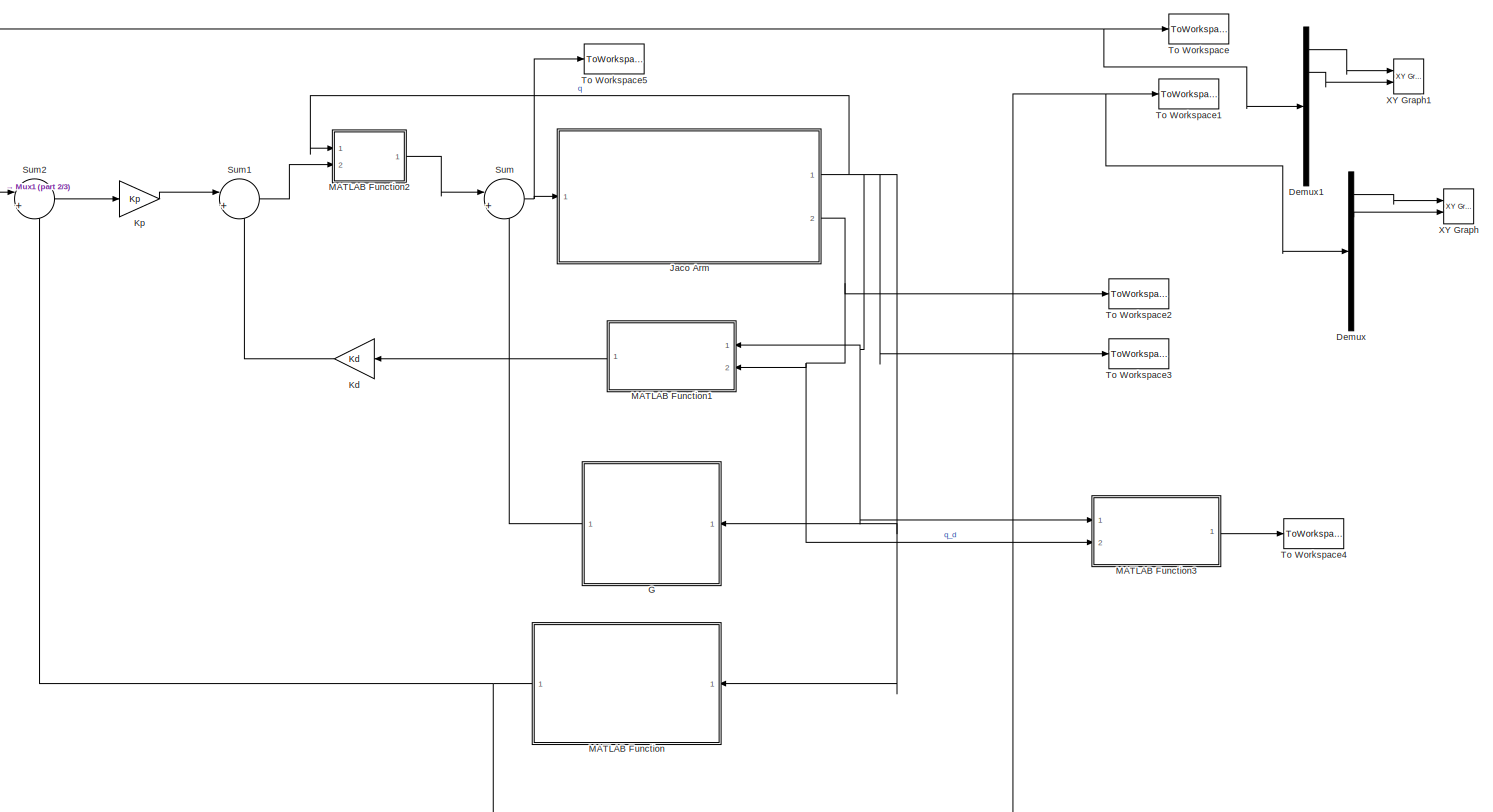
[diagram: root canvas - part 1/3, center side, full height]
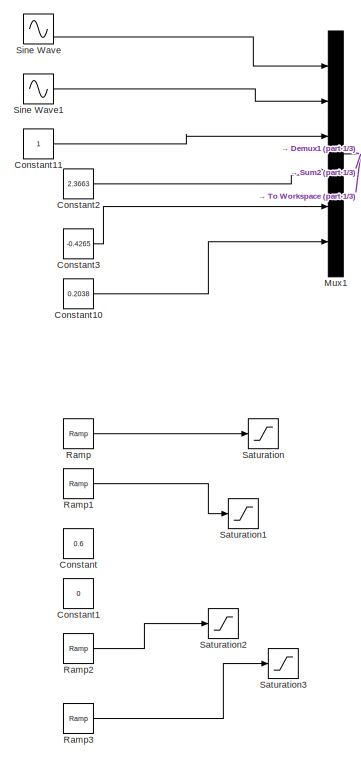
[diagram: root canvas - part 2/3, left side, full height]
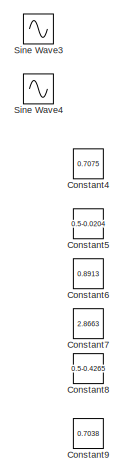
[diagram: root canvas - part 3/3, bottom left region]
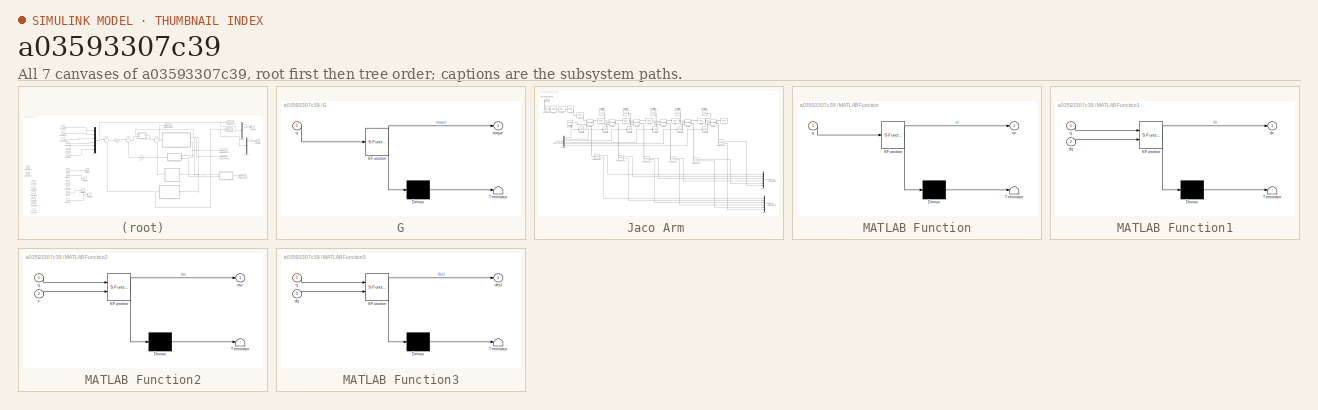
[diagram: thumbnail index - all 7 canvases of the model, root first then tree order]
MODEL slx_a03593307c39
KIND model
CONFIG AbsTol = auto
CONFIG EnableMultiTasking = off
CONFIG FixedStep = auto
CONFIG MaxStep = auto
CONFIG MinStep = auto
CONFIG RelTol = 1e-4
CONFIG SampleTimeConstraint = Unconstrained
CONFIG Solver = ode23tb
CONFIG SolverName = ode23tb
CONFIG StartTime = 0.0
CONFIG StopTime = 40
BLOCK [Constant] Constant
  Value = 0.6
  VectorParams1D = off
BLOCK [Constant] Constant1
  Value = 0
  VectorParams1D = off
BLOCK [Constant] Constant10
  Value = 0.2038
  VectorParams1D = off
BLOCK [Constant] Constant11
  VectorParams1D = off
BLOCK [Constant] Constant2
  Value = 2.3663
  VectorParams1D = off
BLOCK [Constant] Constant3
  Value = -0.4265
  VectorParams1D = off
BLOCK [Constant] Constant4
  Value = 0.7075
  VectorParams1D = off
BLOCK [Constant] Constant5
  Value = 0.5-0.0204
  VectorParams1D = off
BLOCK [Constant] Constant6
  Value = 0.8913
  VectorParams1D = off
BLOCK [Constant] Constant7
  Value = 2.8663
  VectorParams1D = off
BLOCK [Constant] Constant8
  Value = 0.5-0.4265
  VectorParams1D = off
BLOCK [Constant] Constant9
  Value = 0.7038
  VectorParams1D = off
BLOCK [Demux] Demux
  Commented = on
  DisplayOption = bar
  Outputs = 6
  Ports = [1, 6]
BLOCK [Demux] Demux1
  Commented = on
  DisplayOption = bar
  Outputs = 6
  Ports = [1, 6]
BLOCK [SubSystem] G
  ErrorFcn = Stateflow.Translate.translate
  PermitHierarchicalResolution = ExplicitOnly
  Ports = [1, 1]
  RequestExecContextInheritance = off
  SFBlockType = MATLAB Function
  TreatAsAtomicUnit = on
  Variant = off
BLOCK [Demux] G/ Demux 
  Outputs = 1
  Ports = [1, 1]
BLOCK [S-Function] G/ SFunction 
  EnableBusSupport = on
  FunctionName = sf_sfun
  PortCounts = [1 2]
  Ports = [1, 2]
  SFcnIsStateOwnerBlock = off
  SFunctionDeploymentMode = off
  Tag = Stateflow S-Function PD_Ops 2
BLOCK [Terminator] G/ Terminator 
BLOCK [Inport] G/q
  IconDisplay = Port number
BLOCK [Outport] G/torque
  IconDisplay = Port number
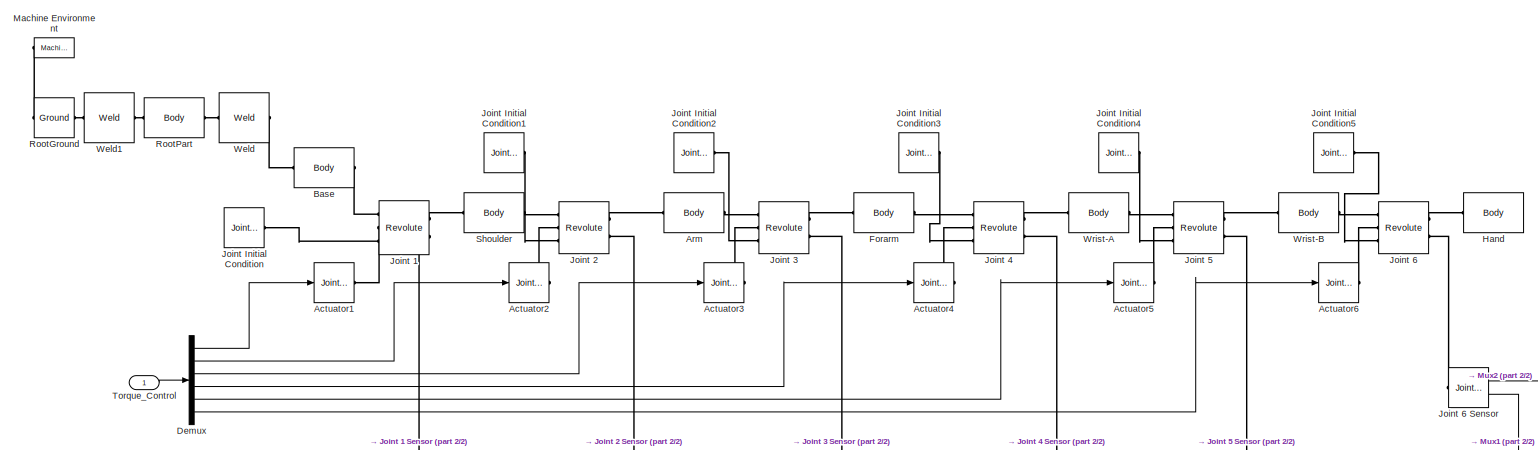
[diagram: Jaco Arm  - part 1/2, full width, top band]
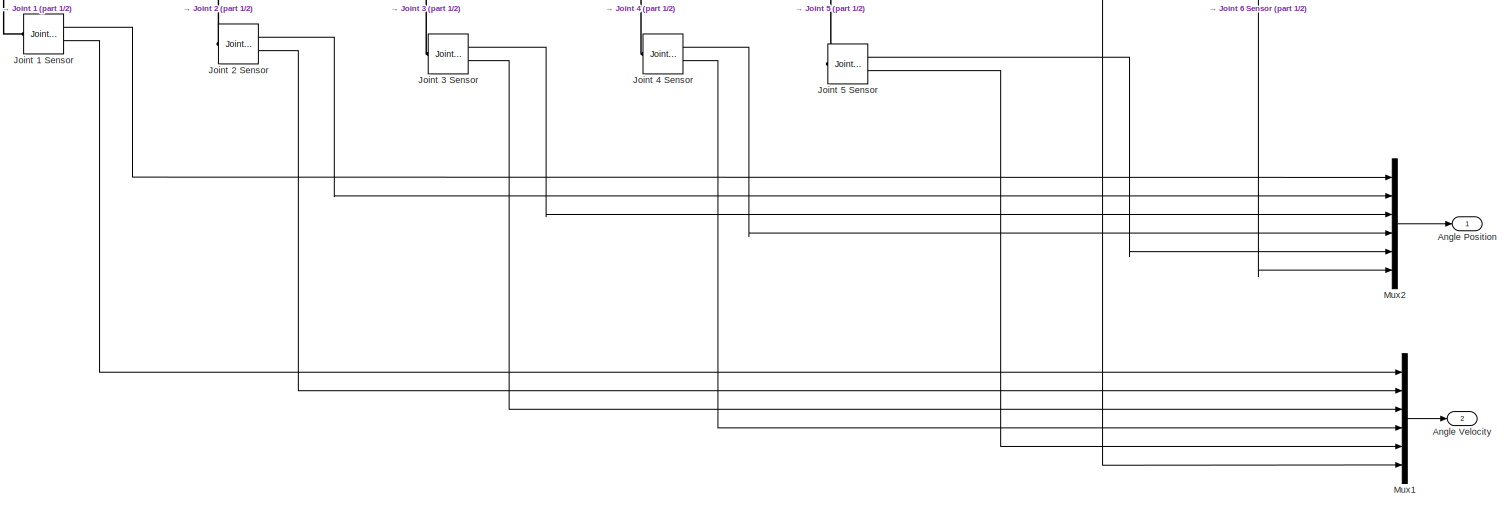
[diagram: Jaco Arm  - part 2/2, full width, bottom band]
BLOCK [SubSystem] Jaco Arm 
  Ports = [1, 2]
  RequestExecContextInheritance = off
  Variant = off
BLOCK [Reference] Jaco Arm /Actuator1  REF=mblibv1/Sensors & 
Actuators/Joint Actuator
  Ports = [1, 0, 0, 0, 0, 0, 1]
  SourceBlock = mblibv1/Sensors & \nActuators/Joint Actuator
  SourceProductBaseCode = MS
  SourceProductName = Simscape Multibody
  SourceType = Joint Actuator
BLOCK [Reference] Jaco Arm /Actuator2  REF=mblibv1/Sensors & 
Actuators/Joint Actuator
  Ports = [1, 0, 0, 0, 0, 0, 1]
  SourceBlock = mblibv1/Sensors & \nActuators/Joint Actuator
  SourceProductBaseCode = MS
  SourceProductName = Simscape Multibody
  SourceType = Joint Actuator
BLOCK [Reference] Jaco Arm /Actuator3  REF=mblibv1/Sensors & 
Actuators/Joint Actuator
  Ports = [1, 0, 0, 0, 0, 0, 1]
  SourceBlock = mblibv1/Sensors & \nActuators/Joint Actuator
  SourceProductBaseCode = MS
  SourceProductName = Simscape Multibody
  SourceType = Joint Actuator
BLOCK [Reference] Jaco Arm /Actuator4  REF=mblibv1/Sensors & 
Actuators/Joint Actuator
  Ports = [1, 0, 0, 0, 0, 0, 1]
  SourceBlock = mblibv1/Sensors & \nActuators/Joint Actuator
  SourceProductBaseCode = MS
  SourceProductName = Simscape Multibody
  SourceType = Joint Actuator
BLOCK [Reference] Jaco Arm /Actuator5  REF=mblibv1/Sensors & 
Actuators/Joint Actuator
  Ports = [1, 0, 0, 0, 0, 0, 1]
  SourceBlock = mblibv1/Sensors & \nActuators/Joint Actuator
  SourceProductBaseCode = MS
  SourceProductName = Simscape Multibody
  SourceType = Joint Actuator
BLOCK [Reference] Jaco Arm /Actuator6  REF=mblibv1/Sensors & 
Actuators/Joint Actuator
  Ports = [1, 0, 0, 0, 0, 0, 1]
  SourceBlock = mblibv1/Sensors & \nActuators/Joint Actuator
  SourceProductBaseCode = MS
  SourceProductName = Simscape Multibody
  SourceType = Joint Actuator
BLOCK [Outport] Jaco Arm /Angle Position 
  IconDisplay = Port number
BLOCK [Outport] Jaco Arm /Angle Velocity
  IconDisplay = Port number
  Port = 2
BLOCK [Reference] Jaco Arm /Arm  REF=mblibv1/Bodies/Body
  Ports = [0, 0, 0, 0, 0, 1, 1]
  SourceBlock = mblibv1/Bodies/Body
  SourceProductBaseCode = MS
  SourceProductName = Simscape Multibody
  SourceType = Body
BLOCK [Reference] Jaco Arm /Base  REF=mblibv1/Bodies/Body
  Ports = [0, 0, 0, 0, 0, 1, 1]
  SourceBlock = mblibv1/Bodies/Body
  SourceProductBaseCode = MS
  SourceProductName = Simscape Multibody
  SourceType = Body
BLOCK [Demux] Jaco Arm /Demux
  DisplayOption = bar
  Outputs = 6
  Ports = [1, 6]
BLOCK [Reference] Jaco Arm /Forarm  REF=mblibv1/Bodies/Body
  Ports = [0, 0, 0, 0, 0, 1, 1]
  SourceBlock = mblibv1/Bodies/Body
  SourceProductBaseCode = MS
  SourceProductName = Simscape Multibody
  SourceType = Body
BLOCK [Reference] Jaco Arm /Hand  REF=mblibv1/Bodies/Body
  Ports = [0, 0, 0, 0, 0, 1]
  SourceBlock = mblibv1/Bodies/Body
  SourceProductBaseCode = MS
  SourceProductName = Simscape Multibody
  SourceType = Body
BLOCK [Reference] Jaco Arm /Joint 1  REF=mblibv1/Joints/Revolute
  Ports = [0, 0, 0, 0, 0, 3, 2]
  SourceBlock = mblibv1/Joints/Revolute
  SourceProductBaseCode = MS
  SourceProductName = Simscape Multibody
  SourceType = Revolute
BLOCK [Reference] Jaco Arm /Joint 1 Sensor  REF=mblibv1/Sensors & 
Actuators/Joint Sensor
  Ports = [0, 2, 0, 0, 0, 1]
  SourceBlock = mblibv1/Sensors & \nActuators/Joint Sensor
  SourceProductBaseCode = MS
  SourceProductName = Simscape Multibody
  SourceType = Joint Sensor
BLOCK [Reference] Jaco Arm /Joint 2  REF=mblibv1/Joints/Revolute
  Ports = [0, 0, 0, 0, 0, 3, 2]
  SourceBlock = mblibv1/Joints/Revolute
  SourceProductBaseCode = MS
  SourceProductName = Simscape Multibody
  SourceType = Revolute
BLOCK [Reference] Jaco Arm /Joint 2 Sensor  REF=mblibv1/Sensors & 
Actuators/Joint Sensor
  Ports = [0, 2, 0, 0, 0, 1]
  SourceBlock = mblibv1/Sensors & \nActuators/Joint Sensor
  SourceProductBaseCode = MS
  SourceProductName = Simscape Multibody
  SourceType = Joint Sensor
BLOCK [Reference] Jaco Arm /Joint 3  REF=mblibv1/Joints/Revolute
  Ports = [0, 0, 0, 0, 0, 3, 2]
  SourceBlock = mblibv1/Joints/Revolute
  SourceProductBaseCode = MS
  SourceProductName = Simscape Multibody
  SourceType = Revolute
BLOCK [Reference] Jaco Arm /Joint 3 Sensor  REF=mblibv1/Sensors & 
Actuators/Joint Sensor
  Ports = [0, 2, 0, 0, 0, 1]
  SourceBlock = mblibv1/Sensors & \nActuators/Joint Sensor
  SourceProductBaseCode = MS
  SourceProductName = Simscape Multibody
  SourceType = Joint Sensor
BLOCK [Reference] Jaco Arm /Joint 4  REF=mblibv1/Joints/Revolute
  Ports = [0, 0, 0, 0, 0, 3, 2]
  SourceBlock = mblibv1/Joints/Revolute
  SourceProductBaseCode = MS
  SourceProductName = Simscape Multibody
  SourceType = Revolute
BLOCK [Reference] Jaco Arm /Joint 4 Sensor  REF=mblibv1/Sensors & 
Actuators/Joint Sensor
  Ports = [0, 2, 0, 0, 0, 1]
  SourceBlock = mblibv1/Sensors & \nActuators/Joint Sensor
  SourceProductBaseCode = MS
  SourceProductName = Simscape Multibody
  SourceType = Joint Sensor
BLOCK [Reference] Jaco Arm /Joint 5  REF=mblibv1/Joints/Revolute
  Ports = [0, 0, 0, 0, 0, 3, 2]
  SourceBlock = mblibv1/Joints/Revolute
  SourceProductBaseCode = MS
  SourceProductName = Simscape Multibody
  SourceType = Revolute
BLOCK [Reference] Jaco Arm /Joint 5 Sensor  REF=mblibv1/Sensors & 
Actuators/Joint Sensor
  Ports = [0, 2, 0, 0, 0, 1]
  SourceBlock = mblibv1/Sensors & \nActuators/Joint Sensor
  SourceProductBaseCode = MS
  SourceProductName = Simscape Multibody
  SourceType = Joint Sensor
BLOCK [Reference] Jaco Arm /Joint 6  REF=mblibv1/Joints/Revolute
  Ports = [0, 0, 0, 0, 0, 3, 2]
  SourceBlock = mblibv1/Joints/Revolute
  SourceProductBaseCode = MS
  SourceProductName = Simscape Multibody
  SourceType = Revolute
BLOCK [Reference] Jaco Arm /Joint 6 Sensor  REF=mblibv1/Sensors & 
Actuators/Joint Sensor
  Ports = [0, 2, 0, 0, 0, 1]
  SourceBlock = mblibv1/Sensors & \nActuators/Joint Sensor
  SourceProductBaseCode = MS
  SourceProductName = Simscape Multibody
  SourceType = Joint Sensor
BLOCK [Reference] Jaco Arm /Joint Initial Condition  REF=mblibv1/Sensors & 
Actuators/Joint Initial Condition
  Ports = [0, 0, 0, 0, 0, 0, 1]
  SourceBlock = mblibv1/Sensors & \nActuators/Joint Initial Condition
  SourceProductBaseCode = MS
  SourceProductName = Simscape Multibody
  SourceType = Joint Initial Condition
BLOCK [Reference] Jaco Arm /Joint Initial Condition1  REF=mblibv1/Sensors & 
Actuators/Joint Initial Condition
  Ports = [0, 0, 0, 0, 0, 0, 1]
  SourceBlock = mblibv1/Sensors & \nActuators/Joint Initial Condition
  SourceProductBaseCode = MS
  SourceProductName = Simscape Multibody
  SourceType = Joint Initial Condition
BLOCK [Reference] Jaco Arm /Joint Initial Condition2  REF=mblibv1/Sensors & 
Actuators/Joint Initial Condition
  Ports = [0, 0, 0, 0, 0, 0, 1]
  SourceBlock = mblibv1/Sensors & \nActuators/Joint Initial Condition
  SourceProductBaseCode = MS
  SourceProductName = Simscape Multibody
  SourceType = Joint Initial Condition
BLOCK [Reference] Jaco Arm /Joint Initial Condition3  REF=mblibv1/Sensors & 
Actuators/Joint Initial Condition
  Ports = [0, 0, 0, 0, 0, 0, 1]
  SourceBlock = mblibv1/Sensors & \nActuators/Joint Initial Condition
  SourceProductBaseCode = MS
  SourceProductName = Simscape Multibody
  SourceType = Joint Initial Condition
BLOCK [Reference] Jaco Arm /Joint Initial Condition4  REF=mblibv1/Sensors & 
Actuators/Joint Initial Condition
  Ports = [0, 0, 0, 0, 0, 0, 1]
  SourceBlock = mblibv1/Sensors & \nActuators/Joint Initial Condition
  SourceProductBaseCode = MS
  SourceProductName = Simscape Multibody
  SourceType = Joint Initial Condition
BLOCK [Reference] Jaco Arm /Joint Initial Condition5  REF=mblibv1/Sensors & 
Actuators/Joint Initial Condition
  Ports = [0, 0, 0, 0, 0, 0, 1]
  SourceBlock = mblibv1/Sensors & \nActuators/Joint Initial Condition
  SourceProductBaseCode = MS
  SourceProductName = Simscape Multibody
  SourceType = Joint Initial Condition
BLOCK [Reference] Jaco Arm /Machine Environment  REF=mblibv1/Bodies/Machine
Environment
  Ports = [0, 0, 0, 0, 0, 0, 1]
  SourceBlock = mblibv1/Bodies/Machine\nEnvironment
  SourceProductBaseCode = MS
  SourceProductName = Simscape Multibody
  SourceType = Machine Environment
BLOCK [Mux] Jaco Arm /Mux1
  DisplayOption = bar
  Inputs = 6
  Ports = [6, 1]
BLOCK [Mux] Jaco Arm /Mux2
  DisplayOption = bar
  Inputs = 6
  Ports = [6, 1]
BLOCK [Reference] Jaco Arm /RootGround  REF=mblibv1/Bodies/Ground
  Ports = [0, 0, 0, 0, 0, 1, 1]
  SourceBlock = mblibv1/Bodies/Ground
  SourceProductBaseCode = MS
  SourceProductName = Simscape Multibody
  SourceType = Ground
  UserDataPersistent = on
BLOCK [Reference] Jaco Arm /RootPart  REF=mblibv1/Bodies/Body
  Ports = [0, 0, 0, 0, 0, 1, 1]
  SourceBlock = mblibv1/Bodies/Body
  SourceProductBaseCode = MS
  SourceProductName = Simscape Multibody
  SourceType = Body
BLOCK [Reference] Jaco Arm /Shoulder  REF=mblibv1/Bodies/Body
  Ports = [0, 0, 0, 0, 0, 1, 1]
  SourceBlock = mblibv1/Bodies/Body
  SourceProductBaseCode = MS
  SourceProductName = Simscape Multibody
  SourceType = Body
BLOCK [Inport] Jaco Arm /Torque_Control 
  IconDisplay = Port number
BLOCK [Reference] Jaco Arm /Weld  REF=mblibv1/Joints/Weld
  Ports = [0, 0, 0, 0, 0, 1, 1]
  SourceBlock = mblibv1/Joints/Weld
  SourceProductBaseCode = MS
  SourceProductName = Simscape Multibody
  SourceType = Weld
BLOCK [Reference] Jaco Arm /Weld1  REF=mblibv1/Joints/Weld
  Ports = [0, 0, 0, 0, 0, 1, 1]
  SourceBlock = mblibv1/Joints/Weld
  SourceProductBaseCode = MS
  SourceProductName = Simscape Multibody
  SourceType = Weld
BLOCK [Reference] Jaco Arm /Wrist-A  REF=mblibv1/Bodies/Body
  Ports = [0, 0, 0, 0, 0, 1, 1]
  SourceBlock = mblibv1/Bodies/Body
  SourceProductBaseCode = MS
  SourceProductName = Simscape Multibody
  SourceType = Body
BLOCK [Reference] Jaco Arm /Wrist-B  REF=mblibv1/Bodies/Body
  Ports = [0, 0, 0, 0, 0, 1, 1]
  SourceBlock = mblibv1/Bodies/Body
  SourceProductBaseCode = MS
  SourceProductName = Simscape Multibody
  SourceType = Body
BLOCK [Gain] Kd
  Gain = Kd
  Multiplication = Matrix(K*u)
  OutDataTypeStr = Inherit: Inherit via internal rule
  ParamDataTypeStr = Inherit: Inherit via internal rule
  SaturateOnIntegerOverflow = off
BLOCK [Gain] Kp
  Gain = Kp
  Multiplication = Matrix(K*u)
  OutDataTypeStr = Inherit: Inherit via internal rule
  ParamDataTypeStr = Inherit: Inherit via internal rule
  SaturateOnIntegerOverflow = off
BLOCK [SubSystem] MATLAB Function
  ErrorFcn = Stateflow.Translate.translate
  PermitHierarchicalResolution = ExplicitOnly
  Ports = [1, 1]
  RequestExecContextInheritance = off
  SFBlockType = MATLAB Function
  TreatAsAtomicUnit = on
  Variant = off
BLOCK [Demux] MATLAB Function/ Demux 
  Outputs = 1
  Ports = [1, 1]
BLOCK [S-Function] MATLAB Function/ SFunction 
  EnableBusSupport = on
  FunctionName = sf_sfun
  PortCounts = [1 2]
  Ports = [1, 2]
  SFcnIsStateOwnerBlock = off
  SFunctionDeploymentMode = off
  Tag = Stateflow S-Function PD_Ops 1
BLOCK [Terminator] MATLAB Function/ Terminator 
BLOCK [Inport] MATLAB Function/q
  IconDisplay = Port number
BLOCK [Outport] MATLAB Function/xe
  IconDisplay = Port number
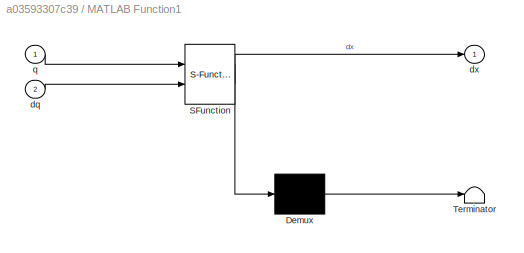
BLOCK [SubSystem] MATLAB Function1
  ErrorFcn = Stateflow.Translate.translate
  PermitHierarchicalResolution = ExplicitOnly
  Ports = [2, 1]
  RequestExecContextInheritance = off
  SFBlockType = MATLAB Function
  TreatAsAtomicUnit = on
  Variant = off
BLOCK [Demux] MATLAB Function1/ Demux 
  Outputs = 1
  Ports = [1, 1]
BLOCK [S-Function] MATLAB Function1/ SFunction 
  EnableBusSupport = on
  FunctionName = sf_sfun
  PortCounts = [2 2]
  Ports = [2, 2]
  SFcnIsStateOwnerBlock = off
  SFunctionDeploymentMode = off
  Tag = Stateflow S-Function PD_Ops 3
BLOCK [Terminator] MATLAB Function1/ Terminator 
BLOCK [Inport] MATLAB Function1/dq
  IconDisplay = Port number
  Port = 2
BLOCK [Outport] MATLAB Function1/dx
  IconDisplay = Port number
BLOCK [Inport] MATLAB Function1/q
  IconDisplay = Port number
BLOCK [SubSystem] MATLAB Function2
  ErrorFcn = Stateflow.Translate.translate
  PermitHierarchicalResolution = ExplicitOnly
  Ports = [2, 1]
  RequestExecContextInheritance = off
  SFBlockType = MATLAB Function
  TreatAsAtomicUnit = on
  Variant = off
BLOCK [Demux] MATLAB Function2/ Demux 
  Outputs = 1
  Ports = [1, 1]
BLOCK [S-Function] MATLAB Function2/ SFunction 
  EnableBusSupport = on
  FunctionName = sf_sfun
  PortCounts = [2 2]
  Ports = [2, 2]
  SFcnIsStateOwnerBlock = off
  SFunctionDeploymentMode = off
  Tag = Stateflow S-Function PD_Ops 4
BLOCK [Terminator] MATLAB Function2/ Terminator 
BLOCK [Inport] MATLAB Function2/q
  IconDisplay = Port number
BLOCK [Outport] MATLAB Function2/tau
  IconDisplay = Port number
BLOCK [Inport] MATLAB Function2/x
  IconDisplay = Port number
  Port = 2
BLOCK [SubSystem] MATLAB Function3
  ErrorFcn = Stateflow.Translate.translate
  PermitHierarchicalResolution = ExplicitOnly
  Ports = [2, 1]
  RequestExecContextInheritance = off
  SFBlockType = MATLAB Function
  TreatAsAtomicUnit = on
  Variant = off
BLOCK [Demux] MATLAB Function3/ Demux 
  Outputs = 1
  Ports = [1, 1]
BLOCK [S-Function] MATLAB Function3/ SFunction 
  EnableBusSupport = on
  FunctionName = sf_sfun
  PortCounts = [2 2]
  Ports = [2, 2]
  SFcnIsStateOwnerBlock = off
  SFunctionDeploymentMode = off
  Tag = Stateflow S-Function PD_Ops 5
BLOCK [Terminator] MATLAB Function3/ Terminator 
BLOCK [Outport] MATLAB Function3/detJ
  IconDisplay = Port number
BLOCK [Inport] MATLAB Function3/dq
  IconDisplay = Port number
  Port = 2
BLOCK [Inport] MATLAB Function3/q
  IconDisplay = Port number
BLOCK [Mux] Mux1
  DisplayOption = bar
  Inputs = 6
  Ports = [6, 1]
BLOCK [Reference] Ramp  REF=simulink/Sources/Ramp
  Ports = [0, 1]
  SourceBlock = simulink/Sources/Ramp
  SourceProductBaseCode = SL
  SourceProductName = Simulink
  SourceType = Ramp
BLOCK [Reference] Ramp1  REF=simulink/Sources/Ramp
  Ports = [0, 1]
  SourceBlock = simulink/Sources/Ramp
  SourceProductBaseCode = SL
  SourceProductName = Simulink
  SourceType = Ramp
BLOCK [Reference] Ramp2  REF=simulink/Sources/Ramp
  Ports = [0, 1]
  SourceBlock = simulink/Sources/Ramp
  SourceProductBaseCode = SL
  SourceProductName = Simulink
  SourceType = Ramp
BLOCK [Reference] Ramp3  REF=simulink/Sources/Ramp
  Ports = [0, 1]
  SourceBlock = simulink/Sources/Ramp
  SourceProductBaseCode = SL
  SourceProductName = Simulink
  SourceType = Ramp
BLOCK [Saturate] Saturation
  InputPortMap = u0
  Ports = [1, 1]
BLOCK [Saturate] Saturation1
  InputPortMap = u0
  Ports = [1, 1]
BLOCK [Saturate] Saturation2
  InputPortMap = u0
  Ports = [1, 1]
BLOCK [Saturate] Saturation3
  InputPortMap = u0
  Ports = [1, 1]
BLOCK [Sin] Sine Wave
  Amplitude = 0.2
  Bias = 0.0075
  Phase = pi/2
  Ports = [0, 1]
  SampleTime = 0
BLOCK [Sin] Sine Wave1
  Amplitude = 0.2
  Bias = -0.0204
  Ports = [0, 1]
  SampleTime = 0
BLOCK [Sin] Sine Wave3
  Amplitude = 0.2038
  Bias = -0.4265
  Phase = pi
  Ports = [0, 1]
  SampleTime = 0
BLOCK [Sin] Sine Wave4
  Amplitude = 0.2038
  Phase = pi/2
  Ports = [0, 1]
  SampleTime = 0
BLOCK [Sum] Sum
  IconShape = round
  InputSameDT = off
  Inputs = |++
  OutDataTypeStr = Inherit: Inherit via internal rule
  Ports = [2, 1]
  SaturateOnIntegerOverflow = off
BLOCK [Sum] Sum1
  IconShape = round
  InputSameDT = off
  Inputs = |+-
  OutDataTypeStr = Inherit: Inherit via internal rule
  Ports = [2, 1]
  SaturateOnIntegerOverflow = off
BLOCK [Sum] Sum2
  IconShape = round
  InputSameDT = off
  Inputs = |+-
  OutDataTypeStr = Inherit: Inherit via internal rule
  Ports = [2, 1]
  SaturateOnIntegerOverflow = off
BLOCK [ToWorkspace] To Workspace
  FixptAsFi = on
  MaxDataPoints = inf
  Ports = [1]
  SampleTime = -1
  Save2DSignal = 3-D array (concatenate along third dimension)
  SaveFormat = Timeseries
  VariableName = xd
BLOCK [ToWorkspace] To Workspace1
  FixptAsFi = on
  MaxDataPoints = inf
  Ports = [1]
  SampleTime = -1
  Save2DSignal = 3-D array (concatenate along third dimension)
  SaveFormat = Timeseries
  VariableName = xe
BLOCK [ToWorkspace] To Workspace2
  FixptAsFi = on
  MaxDataPoints = inf
  Ports = [1]
  SampleTime = -1
  Save2DSignal = 3-D array (concatenate along third dimension)
  SaveFormat = Timeseries
  VariableName = qd
BLOCK [ToWorkspace] To Workspace3
  FixptAsFi = on
  MaxDataPoints = inf
  Ports = [1]
  SampleTime = -1
  Save2DSignal = 3-D array (concatenate along third dimension)
  SaveFormat = Timeseries
  VariableName = q
BLOCK [ToWorkspace] To Workspace4
  FixptAsFi = on
  MaxDataPoints = inf
  Ports = [1]
  SampleTime = -1
  Save2DSignal = 3-D array (concatenate along third dimension)
  SaveFormat = Timeseries
  VariableName = detJ
BLOCK [ToWorkspace] To Workspace5
  FixptAsFi = on
  MaxDataPoints = inf
  Ports = [1]
  SampleTime = -1
  Save2DSignal = 3-D array (concatenate along third dimension)
  SaveFormat = Timeseries
  VariableName = torques
BLOCK [Reference] XY Graph  REF=simulink/Sinks/XY Graph
  Commented = on
  Ports = [2]
  SourceBlock = simulink/Sinks/XY Graph
  SourceProductBaseCode = SL
  SourceProductName = Simulink
  SourceType = XY scope.
BLOCK [Reference] XY Graph1  REF=simulink/Sinks/XY Graph
  Commented = on
  Ports = [2]
  SourceBlock = simulink/Sinks/XY Graph
  SourceProductBaseCode = SL
  SourceProductName = Simulink
  SourceType = XY scope.
LINE Constant10:1 -> Mux1:6
LINE Constant11:1 -> Mux1:3
LINE Constant2:1 -> Mux1:4
LINE Constant3:1 -> Mux1:5
LINE Demux1:1 -> XY Graph1:1
LINE Demux1:2 -> XY Graph1:2
LINE Demux:1 -> XY Graph:1
LINE Demux:2 -> XY Graph:2
LINE G:1 -> Sum:2
LINE Jaco Arm /Demux:1 -> Jaco Arm /Actuator1:1
LINE Jaco Arm /Demux:2 -> Jaco Arm /Actuator2:1
LINE Jaco Arm /Demux:3 -> Jaco Arm /Actuator3:1
LINE Jaco Arm /Demux:4 -> Jaco Arm /Actuator4:1
LINE Jaco Arm /Demux:5 -> Jaco Arm /Actuator5:1
LINE Jaco Arm /Demux:6 -> Jaco Arm /Actuator6:1
LINE Jaco Arm /Joint 1 Sensor:1 -> Jaco Arm /Mux2:1
LINE Jaco Arm /Joint 1 Sensor:2 -> Jaco Arm /Mux1:1
LINE Jaco Arm /Joint 2 Sensor:1 -> Jaco Arm /Mux2:2
LINE Jaco Arm /Joint 2 Sensor:2 -> Jaco Arm /Mux1:2
LINE Jaco Arm /Joint 3 Sensor:1 -> Jaco Arm /Mux2:3
LINE Jaco Arm /Joint 3 Sensor:2 -> Jaco Arm /Mux1:3
LINE Jaco Arm /Joint 4 Sensor:1 -> Jaco Arm /Mux2:4
LINE Jaco Arm /Joint 4 Sensor:2 -> Jaco Arm /Mux1:4
LINE Jaco Arm /Joint 5 Sensor:1 -> Jaco Arm /Mux2:5
LINE Jaco Arm /Joint 5 Sensor:2 -> Jaco Arm /Mux1:5
LINE Jaco Arm /Joint 6 Sensor:1 -> Jaco Arm /Mux2:6
LINE Jaco Arm /Joint 6 Sensor:2 -> Jaco Arm /Mux1:6
LINE Jaco Arm /Mux1:1 -> Jaco Arm /Angle Velocity:1
LINE Jaco Arm /Mux2:1 -> Jaco Arm /Angle Position :1
LINE Jaco Arm /Torque_Control :1 -> Jaco Arm /Demux:1
NET Jaco Arm :1 -> G:1, MATLAB Function1:1, MATLAB Function2:1, MATLAB Function3:1, MATLAB Function:1, To Workspace3:1
NET Jaco Arm :2 -> MATLAB Function1:2, MATLAB Function3:2, To Workspace2:1
LINE Kd:1 -> Sum1:2
LINE Kp:1 -> Sum1:1
LINE MATLAB Function1:1 -> Kd:1
LINE MATLAB Function2:1 -> Sum:1
LINE MATLAB Function3:1 -> To Workspace4:1
NET MATLAB Function:1 -> Demux:1, Sum2:2, To Workspace1:1
NET Mux1:1 -> Demux1:1, Sum2:1, To Workspace:1
LINE Ramp1:1 -> Saturation1:1
LINE Ramp2:1 -> Saturation2:1
LINE Ramp3:1 -> Saturation3:1
LINE Ramp:1 -> Saturation:1
LINE Sine Wave1:1 -> Mux1:2
LINE Sine Wave:1 -> Mux1:1
LINE Sum1:1 -> MATLAB Function2:2
LINE Sum2:1 -> Kp:1
NET Sum:1 -> Jaco Arm :1, To Workspace5:1
PLINE Jaco Arm /Actuator1:RConn1 -- Jaco Arm /Joint 1:LConn2
PLINE Jaco Arm /Actuator2:RConn1 -- Jaco Arm /Joint 2:LConn2
PLINE Jaco Arm /Actuator3:RConn1 -- Jaco Arm /Joint 3:LConn2
PLINE Jaco Arm /Actuator4:RConn1 -- Jaco Arm /Joint 4:LConn2
PLINE Jaco Arm /Actuator5:RConn1 -- Jaco Arm /Joint 5:LConn2
PLINE Jaco Arm /Actuator6:RConn1 -- Jaco Arm /Joint 6:LConn2
PLINE Jaco Arm /Arm:LConn1 -- Jaco Arm /Joint 2:RConn1
PLINE Jaco Arm /Arm:RConn1 -- Jaco Arm /Joint 3:LConn1
PLINE Jaco Arm /Base:LConn1 -- Jaco Arm /Weld:RConn1
PLINE Jaco Arm /Base:RConn1 -- Jaco Arm /Joint 1:LConn1
PLINE Jaco Arm /Forarm:LConn1 -- Jaco Arm /Joint 3:RConn1
PLINE Jaco Arm /Forarm:RConn1 -- Jaco Arm /Joint 4:LConn1
PLINE Jaco Arm /Hand:LConn1 -- Jaco Arm /Joint 6:RConn1
PLINE Jaco Arm /Joint 1 Sensor:LConn1 -- Jaco Arm /Joint 1:RConn2
PLINE Jaco Arm /Joint 1:LConn3 -- Jaco Arm /Joint Initial Condition:RConn1
PLINE Jaco Arm /Joint 1:RConn1 -- Jaco Arm /Shoulder:LConn1
PLINE Jaco Arm /Joint 2 Sensor:LConn1 -- Jaco Arm /Joint 2:RConn2
PLINE Jaco Arm /Joint 2:LConn1 -- Jaco Arm /Shoulder:RConn1
PLINE Jaco Arm /Joint 2:LConn3 -- Jaco Arm /Joint Initial Condition1:RConn1
PLINE Jaco Arm /Joint 3 Sensor:LConn1 -- Jaco Arm /Joint 3:RConn2
PLINE Jaco Arm /Joint 3:LConn3 -- Jaco Arm /Joint Initial Condition2:RConn1
PLINE Jaco Arm /Joint 4 Sensor:LConn1 -- Jaco Arm /Joint 4:RConn2
PLINE Jaco Arm /Joint 4:LConn3 -- Jaco Arm /Joint Initial Condition3:RConn1
PLINE Jaco Arm /Joint 4:RConn1 -- Jaco Arm /Wrist-A:LConn1
PLINE Jaco Arm /Joint 5 Sensor:LConn1 -- Jaco Arm /Joint 5:RConn2
PLINE Jaco Arm /Joint 5:LConn1 -- Jaco Arm /Wrist-A:RConn1
PLINE Jaco Arm /Joint 5:LConn3 -- Jaco Arm /Joint Initial Condition4:RConn1
PLINE Jaco Arm /Joint 5:RConn1 -- Jaco Arm /Wrist-B:LConn1
PLINE Jaco Arm /Joint 6 Sensor:LConn1 -- Jaco Arm /Joint 6:RConn2
PLINE Jaco Arm /Joint 6:LConn1 -- Jaco Arm /Wrist-B:RConn1
PLINE Jaco Arm /Joint 6:LConn3 -- Jaco Arm /Joint Initial Condition5:RConn1
PLINE Jaco Arm /Machine Environment:RConn1 -- Jaco Arm /RootGround:LConn1
PLINE Jaco Arm /RootGround:RConn1 -- Jaco Arm /Weld1:LConn1
PLINE Jaco Arm /RootPart:LConn1 -- Jaco Arm /Weld1:RConn1
PLINE Jaco Arm /RootPart:RConn1 -- Jaco Arm /Weld:LConn1
note: NET lines group one-source signal fan-out (src -> all destinations, sorted); 1:1 wires keep LINE
CHART MATLAB Function states=1 transitions=1
  STATE_LABEL 'eML_blk_kernel()'
  STATE_LABEL 'SCRIPT:\nfunction xe   = DirectKinematics(q)\n% DirectKinematics\n%    [ Oe, Re ] = DirectKinematics(q)\n%    This function was generated by the Symbolic Math Toolbox version 7.2.\n%    23-Apr-2017 13:45:31\n\nq1=q(1);\nq2=q(2);\nq3=q(3);\nq4=q(4);\nq5=q(5);\nq6=q(6);\n\nt2 = pi.*(1.1e1./3.6e1);\nt3 = sin(t2);\nt4 = sin(q1);\nt5 = cos(q1);\nt6 = q2-q3;\nt7 = 1.0./t3;\nt8 = pi.*(1.1e1./7.2e1);\nt9 = sin(t8);\nt10 = cos(...<+1850ch>'
CHART G states=1 transitions=1
  STATE_LABEL 'eML_blk_kernel()'
  STATE_LABEL 'SCRIPT:\nfunction torque  = gravity(q)\n%GRAVITY\n%    TORQUE = GRAVITY(Q1,Q2,Q3,Q4,Q5,Q6)\n\n%    This function was generated by the Symbolic Math Toolbox version 5.8.\n%    15-Mar-2017 14:16:45\n\nq1=q(1);\nq2=q(2);\nq3=q(3);\nq4=q(4);\nq5=q(5);\nq6=q(6);\n\nt2 = cos(q2);\nt3 = pi.*(1.1e1./3.6e1);\nt4 = sin(q3);\nt5 = cos(q3);\nt6 = sin(q2);\nt9 = t2.*t4;\nt10 = t5.*t6;\nt7 = t9-t10;\nt8 = sin(t3);\nt11 = 1.0./t8;\nt12 ...<+3398ch>'
CHART MATLAB Function1 states=1 transitions=1
  STATE_LABEL 'eML_blk_kernel()'
  STATE_LABEL 'SCRIPT:\nfunction dx = J_A(q,dq)\n%J_A\n%    JA = J_A(DQ1,DQ2,DQ3,DQ4,DQ5,DQ6,Q1,Q2,Q3,Q4,Q5,Q6)\n\n%    This function was generated by the Symbolic Math Toolbox version 7.2.\n%    23-Apr-2017 18:57:51\nq1=q(1);\nq2=q(2);\nq3=q(3);\nq4=q(4);\nq5=q(5);\nq6=q(6);\n\nt2 = pi.*(1.1e1./3.6e1);\nt3 = sin(t2);\nt4 = cos(q1);\nt5 = sin(q1);\nt6 = q2-q3;\nt7 = 1.0./t3;\nt8 = pi.*(1.1e1./7.2e1);\nt9 = sin(t8);\nt10 = cos(t2);\nt1...<+3608ch>'
CHART MATLAB Function2 states=1 transitions=1
  STATE_LABEL 'eML_blk_kernel()'
  STATE_LABEL 'SCRIPT:\nfunction tau = J_A_T(q,x)\n%J_A\n%    JA = J_A(DQ1,DQ2,DQ3,DQ4,DQ5,DQ6,Q1,Q2,Q3,Q4,Q5,Q6)\n\n%    This function was generated by the Symbolic Math Toolbox version 7.2.\n%    23-Apr-2017 18:57:51\n%q=num2cell(q);\nq1=q(1);\nq2=q(2);\nq3=q(3);\nq4=q(4);\nq5=q(5);\nq6=q(6);\n\nt2 = pi.*(1.1e1./3.6e1);\nt3 = sin(t2);\nt4 = cos(q1);\nt5 = sin(q1);\nt6 = q2-q3;\nt7 = 1.0./t3;\nt8 = pi.*(1.1e1./7.2e1);\nt9 = sin(t8);...<+3608ch>'
CHART MATLAB Function3 states=1 transitions=1
  STATE_LABEL 'eML_blk_kernel()'
  STATE_LABEL 'SCRIPT:\nfunction detJ = J_A(q,dq)\n%J_A\n%    JA = J_A(DQ1,DQ2,DQ3,DQ4,DQ5,DQ6,Q1,Q2,Q3,Q4,Q5,Q6)\n\n%    This function was generated by the Symbolic Math Toolbox version 7.2.\n%    23-Apr-2017 18:57:51\nq1=q(1);\nq2=q(2);\nq3=q(3);\nq4=q(4);\nq5=q(5);\nq6=q(6);\n\nt2 = pi.*(1.1e1./3.6e1);\nt3 = sin(t2);\nt4 = cos(q1);\nt5 = sin(q1);\nt6 = q2-q3;\nt7 = 1.0./t3;\nt8 = pi.*(1.1e1./7.2e1);\nt9 = sin(t8);\nt10 = cos(t2);\n...<+3608ch>'
